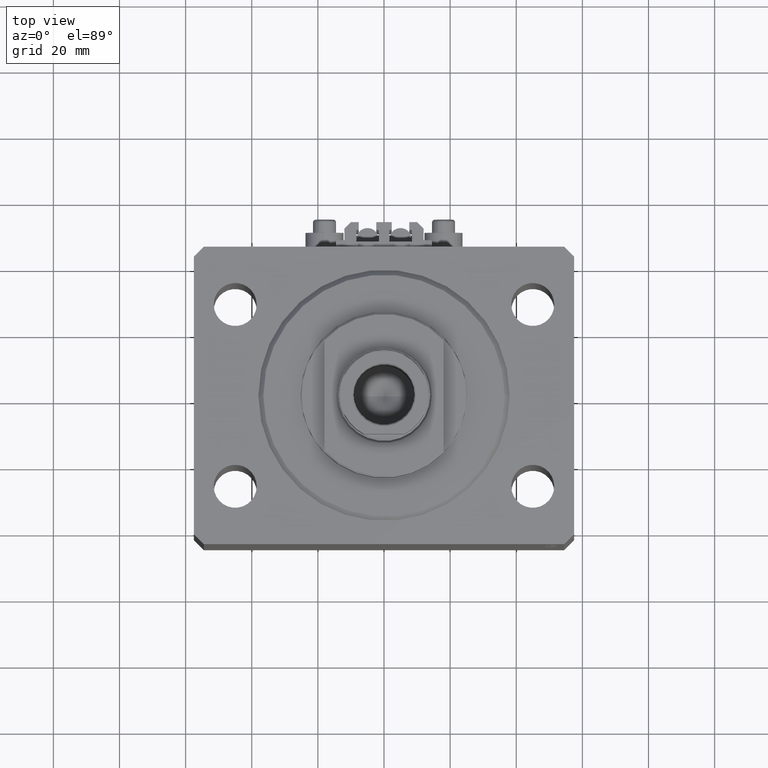
[diagram: clean part render]
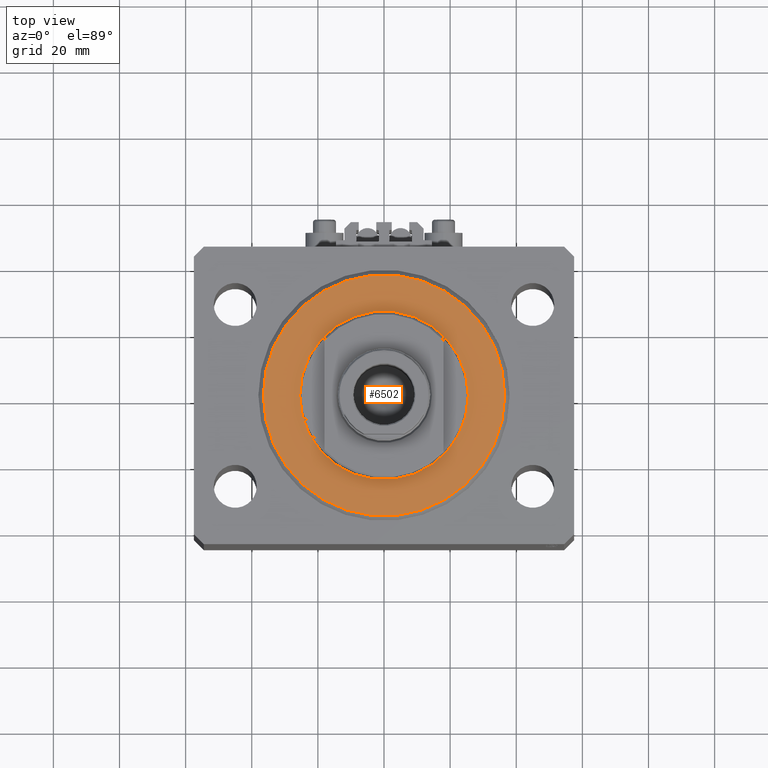
[diagram: same view with one face highlighted and labeled with its STEP entity id]
A machine part, top view. The second image highlights one B-rep face of the part: STEP entity #6502.
In plain terms, the highlighted planar face has unit normal (0, 0, -1).
Its self-contained STEP definition (entity closure, byte-faithful):
#1192 = CIRCLE ( 'NONE', #43984, 36.50000000000000000 ) ;
#2525 = ORIENTED_EDGE ( 'NONE', *, *, #47867, .T. ) ;
#2653 = DIRECTION ( 'NONE',  ( 0.000000000000000000, 0.000000000000000000, 1.000000000000000000 ) ) ;
#6502 = ADVANCED_FACE ( 'NONE', ( #38230, #8477 ), #34333, .F. ) ;
#8115 = DIRECTION ( 'NONE',  ( -0.000000000000000000, -0.000000000000000000, -1.000000000000000000 ) ) ;
#8477 = FACE_OUTER_BOUND ( 'NONE', #24260, .T. ) ;
#9199 = VERTEX_POINT ( 'NONE', #38938 ) ;
#9699 = CARTESIAN_POINT ( 'NONE',  ( 0.000000000000000000, 0.000000000000000000, 0.000000000000000000 ) ) ;
#11542 = DIRECTION ( 'NONE',  ( 1.000000000000000000, 0.000000000000000000, 0.000000000000000000 ) ) ;
#12154 = VERTEX_POINT ( 'NONE', #12293 ) ;
#12293 = CARTESIAN_POINT ( 'NONE',  ( -36.50000000000000000, 4.561809326823889791E-15, 0.000000000000000000 ) ) ;
#13851 = EDGE_CURVE ( 'NONE', #30186, #9199, #19655, .T. ) ;
#17376 = CARTESIAN_POINT ( 'NONE',  ( 25.50000000000000355, 0.000000000000000000, 2.168404344971008868E-16 ) ) ;
#18305 = CARTESIAN_POINT ( 'NONE',  ( 36.50000000000000000, 0.000000000000000000, 0.000000000000000000 ) ) ;
#19655 = CIRCLE ( 'NONE', #43000, 25.50000000000000355 ) ;
#20329 = AXIS2_PLACEMENT_3D ( 'NONE', #41777, #41531, #11542 ) ;
#22555 = ORIENTED_EDGE ( 'NONE', *, *, #34744, .T. ) ;
#22972 = ORIENTED_EDGE ( 'NONE', *, *, #13851, .T. ) ;
#24260 = EDGE_LOOP ( 'NONE', ( #2525, #24438 ) ) ;
#24438 = ORIENTED_EDGE ( 'NONE', *, *, #47582, .T. ) ;
#26281 = DIRECTION ( 'NONE',  ( 1.000000000000000000, 0.000000000000000000, 0.000000000000000000 ) ) ;
#26903 = CARTESIAN_POINT ( 'NONE',  ( 0.000000000000000000, 0.000000000000000000, 0.000000000000000000 ) ) ;
#28499 = DIRECTION ( 'NONE',  ( 1.000000000000000000, 0.000000000000000000, 0.000000000000000000 ) ) ;
#30186 = VERTEX_POINT ( 'NONE', #17376 ) ;
#30429 = CARTESIAN_POINT ( 'NONE',  ( 0.000000000000000000, 0.000000000000000000, 0.000000000000000000 ) ) ;
#31408 = EDGE_LOOP ( 'NONE', ( #22972, #22555 ) ) ;
#33617 = CARTESIAN_POINT ( 'NONE',  ( 0.000000000000000000, 0.000000000000000000, 0.000000000000000000 ) ) ;
#33915 = CIRCLE ( 'NONE', #45531, 36.50000000000000000 ) ;
#34333 = PLANE ( 'NONE',  #40433 ) ;
#34558 = DIRECTION ( 'NONE',  ( -0.000000000000000000, -0.000000000000000000, -1.000000000000000000 ) ) ;
#34744 = EDGE_CURVE ( 'NONE', #9199, #30186, #41348, .T. ) ;
#38230 = FACE_BOUND ( 'NONE', #31408, .T. ) ;
#38938 = CARTESIAN_POINT ( 'NONE',  ( -25.50000000000000355, 3.122849337825751011E-15, 2.168404344971008868E-16 ) ) ;
#40433 = AXIS2_PLACEMENT_3D ( 'NONE', #33617, #41166, #45048 ) ;
#41166 = DIRECTION ( 'NONE',  ( 0.000000000000000000, 0.000000000000000000, 1.000000000000000000 ) ) ;
#41348 = CIRCLE ( 'NONE', #20329, 25.50000000000000355 ) ;
#41531 = DIRECTION ( 'NONE',  ( 0.000000000000000000, 0.000000000000000000, 1.000000000000000000 ) ) ;
#41758 = DIRECTION ( 'NONE',  ( 1.000000000000000000, 0.000000000000000000, 0.000000000000000000 ) ) ;
#41777 = CARTESIAN_POINT ( 'NONE',  ( 0.000000000000000000, 0.000000000000000000, 0.000000000000000000 ) ) ;
#43000 = AXIS2_PLACEMENT_3D ( 'NONE', #9699, #2653, #28499 ) ;
#43984 = AXIS2_PLACEMENT_3D ( 'NONE', #26903, #8115, #41758 ) ;
#45048 = DIRECTION ( 'NONE',  ( 1.000000000000000000, 0.000000000000000000, -0.000000000000000000 ) ) ;
#45531 = AXIS2_PLACEMENT_3D ( 'NONE', #30429, #34558, #26281 ) ;
#47172 = VERTEX_POINT ( 'NONE', #18305 ) ;
#47582 = EDGE_CURVE ( 'NONE', #12154, #47172, #33915, .T. ) ;
#47867 = EDGE_CURVE ( 'NONE', #47172, #12154, #1192, .T. ) ;